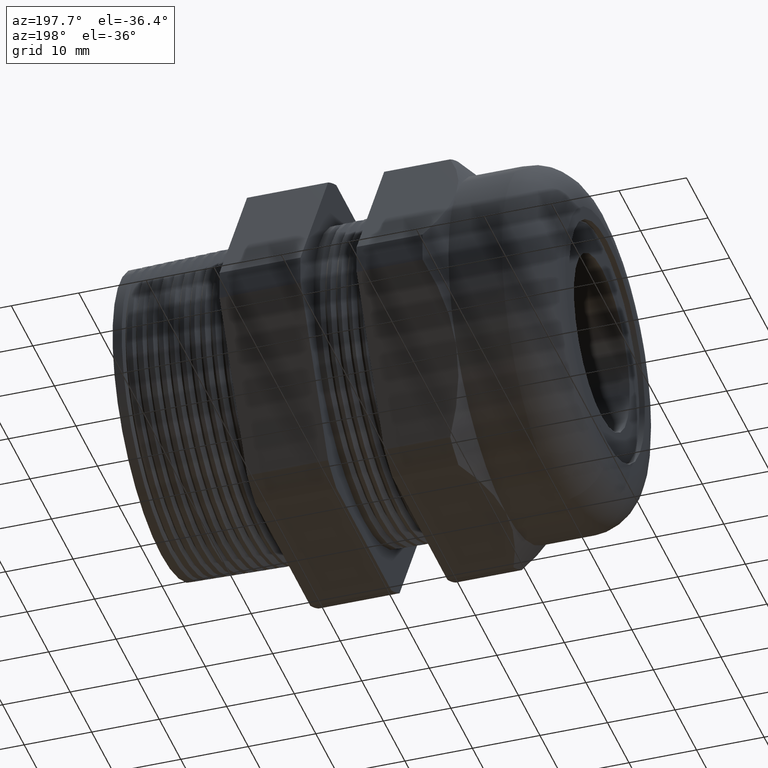
[diagram: clean part render]
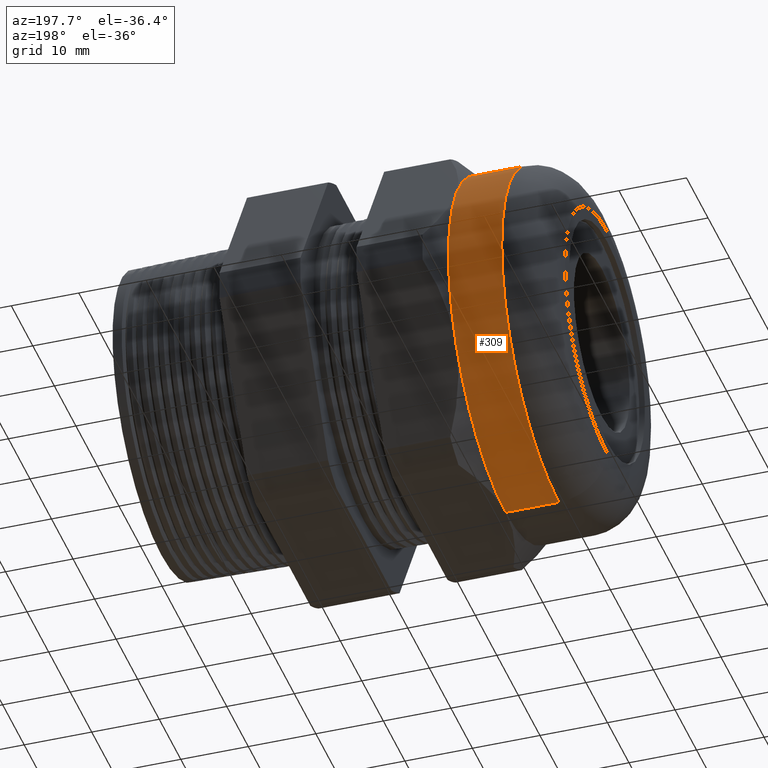
[diagram: same view with one face highlighted and labeled with its STEP entity id]
A machine part, auxiliary view. The second image highlights one B-rep face of the part: STEP entity #309.
In plain terms, the highlighted cylindrical surface (partial cylindrical patch) has radius 26.543 mm, axis along (1, 0, 0).
Its self-contained STEP definition (entity closure, byte-faithful):
#293 = ORIENTED_EDGE ( 'NONE', *, *, #294, .F. ) ;
#294 = EDGE_CURVE ( 'NONE', #295, #323, #1213, .T. ) ;
#295 = VERTEX_POINT ( 'NONE', #1209 ) ;
#296 = ORIENTED_EDGE ( 'NONE', *, *, #297, .F. ) ;
#297 = EDGE_CURVE ( 'NONE', #462, #295, #1208, .T. ) ;
#309 = ADVANCED_FACE ( 'NONE', ( #1245 ), #1244, .T. ) ;
#311 = EDGE_LOOP ( 'NONE', ( #312, #314, #318, #321, #293, #296 ) ) ;
#312 = ORIENTED_EDGE ( 'NONE', *, *, #461, .T. ) ;
#314 = ORIENTED_EDGE ( 'NONE', *, *, #316, .T. ) ;
#316 = EDGE_CURVE ( 'NONE', #463, #317, #1297, .T. ) ;
#317 = VERTEX_POINT ( 'NONE', #1293 ) ;
#318 = ORIENTED_EDGE ( 'NONE', *, *, #319, .F. ) ;
#319 = EDGE_CURVE ( 'NONE', #320, #317, #1292, .T. ) ;
#320 = VERTEX_POINT ( 'NONE', #1287 ) ;
#321 = ORIENTED_EDGE ( 'NONE', *, *, #322, .F. ) ;
#322 = EDGE_CURVE ( 'NONE', #323, #320, #1286, .T. ) ;
#323 = VERTEX_POINT ( 'NONE', #1281 ) ;
#461 = EDGE_CURVE ( 'NONE', #462, #463, #1524, .T. ) ;
#462 = VERTEX_POINT ( 'NONE', #1519 ) ;
#463 = VERTEX_POINT ( 'NONE', #1518 ) ;
#1205 = DIRECTION ( 'NONE',  ( 1.000000000000000000, 0.0000000000000000000, 0.0000000000000000000 ) ) ;
#1206 = VECTOR ( 'NONE', #1205, 39.37007874015748100 ) ;
#1207 = CARTESIAN_POINT ( 'NONE',  ( 0.0000000000000000000, 0.0000000000000000000, -1.044999999999999900 ) ) ;
#1208 = LINE ( 'NONE', #1207, #1206 ) ;
#1209 = CARTESIAN_POINT ( 'NONE',  ( -1.609449999999999400, 0.0000000000000000000, -1.045000000000000400 ) ) ;
#1210 = DIRECTION ( 'NONE',  ( 0.0000000000000000000, 0.0000000000000000000, -1.000000000000000000 ) ) ;
#1211 = DIRECTION ( 'NONE',  ( 1.000000000000000000, 0.0000000000000000000, 0.0000000000000000000 ) ) ;
#1212 = AXIS2_PLACEMENT_3D ( 'NONE', #1218, #1211, #1210 ) ;
#1213 = CIRCLE ( 'NONE', #1212, 1.044999999999999900 ) ;
#1218 = CARTESIAN_POINT ( 'NONE',  ( -1.609449999999999400, 0.0000000000000000000, 0.0000000000000000000 ) ) ;
#1239 = DIRECTION ( 'NONE',  ( 0.0000000000000000000, 0.0000000000000000000, -1.000000000000000000 ) ) ;
#1240 = DIRECTION ( 'NONE',  ( 1.000000000000000000, 0.0000000000000000000, 0.0000000000000000000 ) ) ;
#1241 = CARTESIAN_POINT ( 'NONE',  ( 0.0000000000000000000, 0.0000000000000000000, 0.0000000000000000000 ) ) ;
#1242 = AXIS2_PLACEMENT_3D ( 'NONE', #1241, #1240, #1239 ) ;
#1244 = CYLINDRICAL_SURFACE ( 'NONE', #1242, 1.044999999999999900 ) ;
#1245 = FACE_OUTER_BOUND ( 'NONE', #311, .T. ) ;
#1281 = CARTESIAN_POINT ( 'NONE',  ( -1.609449999999999400, 0.9049965469547388600, -0.5225000000000000800 ) ) ;
#1282 = DIRECTION ( 'NONE',  ( 0.0000000000000000000, 0.0000000000000000000, -1.000000000000000000 ) ) ;
#1283 = DIRECTION ( 'NONE',  ( 1.000000000000000000, 0.0000000000000000000, 0.0000000000000000000 ) ) ;
#1284 = CARTESIAN_POINT ( 'NONE',  ( -1.609449999999999400, 0.0000000000000000000, 0.0000000000000000000 ) ) ;
#1285 = AXIS2_PLACEMENT_3D ( 'NONE', #1284, #1283, #1282 ) ;
#1286 = CIRCLE ( 'NONE', #1285, 1.044999999999999900 ) ;
#1287 = CARTESIAN_POINT ( 'NONE',  ( -1.609449999999999400, 0.9049965469547388600, 0.5225000000000001900 ) ) ;
#1288 = DIRECTION ( 'NONE',  ( 0.0000000000000000000, 0.0000000000000000000, -1.000000000000000000 ) ) ;
#1289 = DIRECTION ( 'NONE',  ( 1.000000000000000000, 0.0000000000000000000, 0.0000000000000000000 ) ) ;
#1290 = CARTESIAN_POINT ( 'NONE',  ( -1.609449999999999400, 0.0000000000000000000, 0.0000000000000000000 ) ) ;
#1291 = AXIS2_PLACEMENT_3D ( 'NONE', #1290, #1289, #1288 ) ;
#1292 = CIRCLE ( 'NONE', #1291, 1.044999999999999900 ) ;
#1293 = CARTESIAN_POINT ( 'NONE',  ( -1.609449999999999400, 0.0000000000000000000, 1.044999999999999700 ) ) ;
#1294 = DIRECTION ( 'NONE',  ( 1.000000000000000000, 0.0000000000000000000, 0.0000000000000000000 ) ) ;
#1295 = VECTOR ( 'NONE', #1294, 39.37007874015748100 ) ;
#1296 = CARTESIAN_POINT ( 'NONE',  ( 0.0000000000000000000, 1.279755905108984100E-016, 1.044999999999999900 ) ) ;
#1297 = LINE ( 'NONE', #1296, #1295 ) ;
#1518 = CARTESIAN_POINT ( 'NONE',  ( -1.919999999999999500, 1.279755905108984100E-016, 1.044999999999999900 ) ) ;
#1519 = CARTESIAN_POINT ( 'NONE',  ( -1.919999999999999500, 0.0000000000000000000, -1.044999999999999900 ) ) ;
#1520 = DIRECTION ( 'NONE',  ( 0.0000000000000000000, 0.0000000000000000000, 1.000000000000000000 ) ) ;
#1521 = DIRECTION ( 'NONE',  ( 1.000000000000000000, 0.0000000000000000000, 0.0000000000000000000 ) ) ;
#1522 = CARTESIAN_POINT ( 'NONE',  ( -1.919999999999999500, 0.0000000000000000000, 0.0000000000000000000 ) ) ;
#1523 = AXIS2_PLACEMENT_3D ( 'NONE', #1522, #1521, #1520 ) ;
#1524 = CIRCLE ( 'NONE', #1523, 1.044999999999999900 ) ;